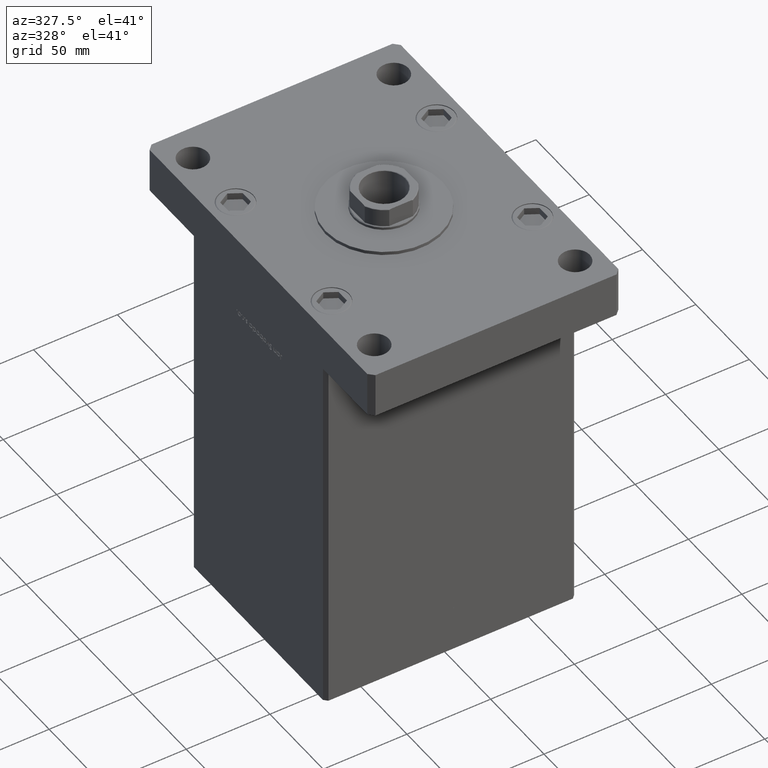
[diagram: clean part render]
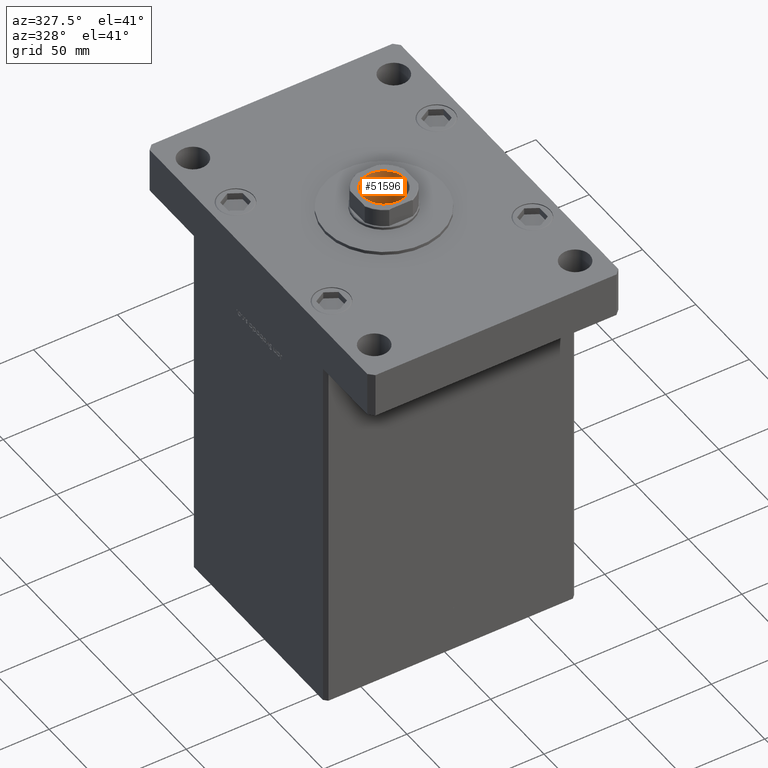
[diagram: same view with one face highlighted and labeled with its STEP entity id]
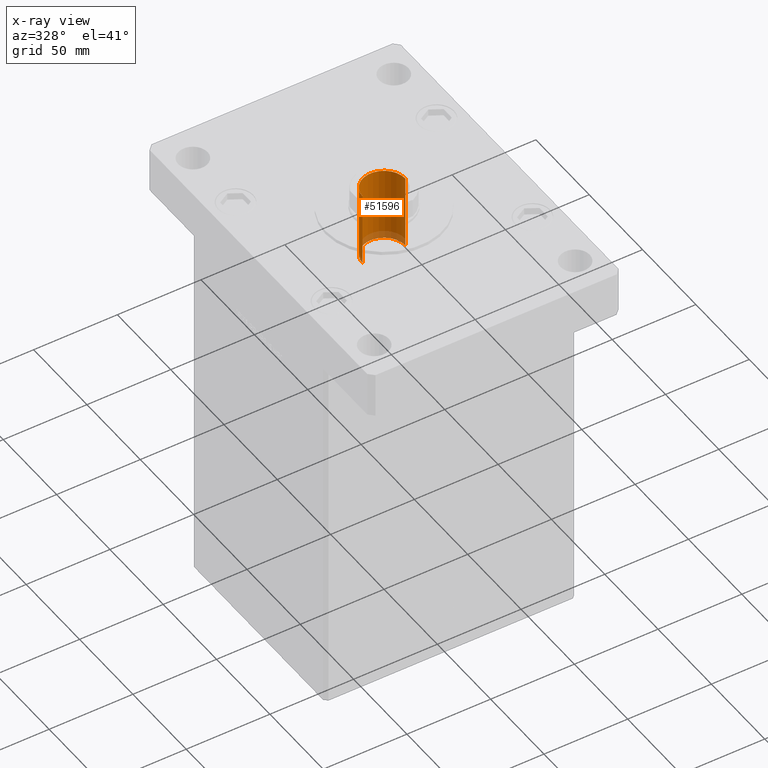
[diagram: x-ray of the same camera — body ghosted, the highlighted face saturated]
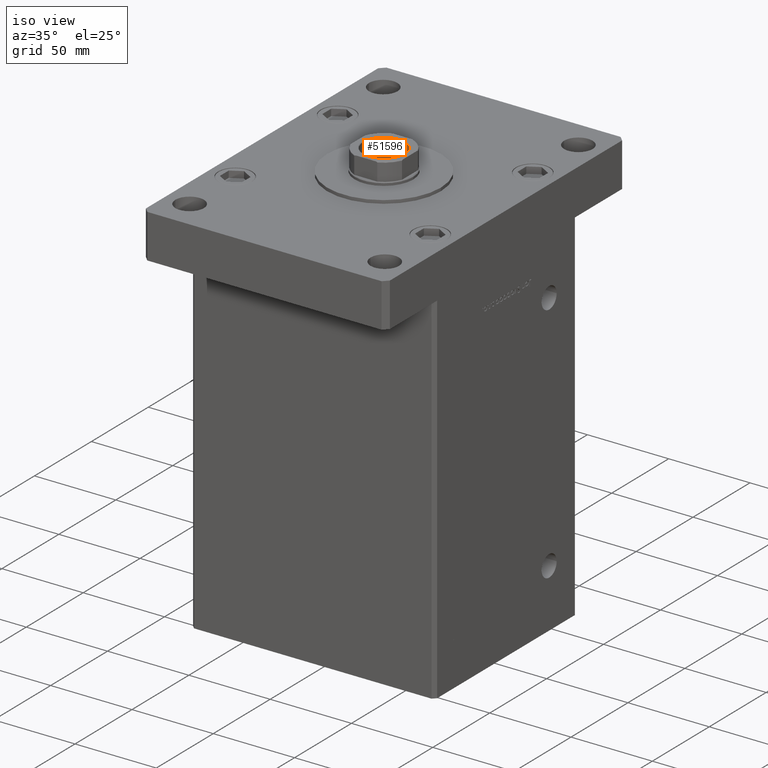
[diagram: same view with one face highlighted and labeled with its STEP entity id]
A machine part, auxiliary view. The second image highlights one B-rep face of the part: STEP entity #51596.
The next image is the same camera in x-ray: the body ghosted, the highlighted face saturated — about 10% of this face is hidden behind the body in this view.
A second angle (iso view) of the same face is appended — the face is thin or edge-on in the first view.
In plain terms, the highlighted cylindrical surface (edge-blend (fillet) strip) has radius 12.75 mm, axis along (0, 0, 1).
Its self-contained STEP definition (entity closure, byte-faithful):
#425 = VERTEX_POINT ( 'NONE', #40135 ) ;
#503 = DIRECTION ( 'NONE',  ( 1.000000000000000000, 0.000000000000000000, 0.000000000000000000 ) ) ;
#2831 = DIRECTION ( 'NONE',  ( 1.000000000000000000, 0.000000000000000000, 0.000000000000000000 ) ) ;
#3425 = CARTESIAN_POINT ( 'NONE',  ( 12.74999999999999467, 0.000000000000000000, 229.5000000000000000 ) ) ;
#5570 = EDGE_CURVE ( 'NONE', #27498, #425, #47304, .T. ) ;
#5645 = CARTESIAN_POINT ( 'NONE',  ( 12.74999999999999467, 0.000000000000000000, 229.1999999999999886 ) ) ;
#8087 = AXIS2_PLACEMENT_3D ( 'NONE', #48754, #28157, #503 ) ;
#9925 = ORIENTED_EDGE ( 'NONE', *, *, #41392, .F. ) ;
#10443 = CYLINDRICAL_SURFACE ( 'NONE', #11723, 12.74999999999999467 ) ;
#11325 = VECTOR ( 'NONE', #43482, 1000.000000000000000 ) ;
#11723 = AXIS2_PLACEMENT_3D ( 'NONE', #22381, #43226, #2831 ) ;
#11893 = CARTESIAN_POINT ( 'NONE',  ( -12.74999999999999112, 1.561424668912874125E-15, 184.5000000000000000 ) ) ;
#12684 = VERTEX_POINT ( 'NONE', #21571 ) ;
#21571 = CARTESIAN_POINT ( 'NONE',  ( 12.74999999999999112, 0.000000000000000000, 184.5000000000000000 ) ) ;
#22381 = CARTESIAN_POINT ( 'NONE',  ( 0.000000000000000000, 0.000000000000000000, 229.5000000000000000 ) ) ;
#24039 = DIRECTION ( 'NONE',  ( -0.000000000000000000, -0.000000000000000000, 1.000000000000000000 ) ) ;
#24907 = AXIS2_PLACEMENT_3D ( 'NONE', #28917, #45441, #44906 ) ;
#25272 = VECTOR ( 'NONE', #24039, 1000.000000000000000 ) ;
#26455 = FACE_OUTER_BOUND ( 'NONE', #27309, .T. ) ;
#26975 = CARTESIAN_POINT ( 'NONE',  ( -12.74999999999999467, 1.561424668912874519E-15, 229.5000000000000000 ) ) ;
#27309 = EDGE_LOOP ( 'NONE', ( #38007, #9925, #34079, #41601 ) ) ;
#27498 = VERTEX_POINT ( 'NONE', #11893 ) ;
#28157 = DIRECTION ( 'NONE',  ( -0.000000000000000000, -0.000000000000000000, 1.000000000000000000 ) ) ;
#28900 = LINE ( 'NONE', #3425, #25272 ) ;
#28917 = CARTESIAN_POINT ( 'NONE',  ( 0.000000000000000000, 0.000000000000000000, 229.1999999999999886 ) ) ;
#32998 = EDGE_CURVE ( 'NONE', #37667, #425, #38750, .T. ) ;
#34079 = ORIENTED_EDGE ( 'NONE', *, *, #37795, .T. ) ;
#37667 = VERTEX_POINT ( 'NONE', #5645 ) ;
#37795 = EDGE_CURVE ( 'NONE', #12684, #37667, #28900, .T. ) ;
#38007 = ORIENTED_EDGE ( 'NONE', *, *, #5570, .F. ) ;
#38750 = CIRCLE ( 'NONE', #24907, 12.74999999999999467 ) ;
#40135 = CARTESIAN_POINT ( 'NONE',  ( -12.74999999999999467, 1.561424668912874519E-15, 229.1999999999999886 ) ) ;
#41392 = EDGE_CURVE ( 'NONE', #12684, #27498, #44397, .T. ) ;
#41601 = ORIENTED_EDGE ( 'NONE', *, *, #32998, .T. ) ;
#43226 = DIRECTION ( 'NONE',  ( -0.000000000000000000, -0.000000000000000000, 1.000000000000000000 ) ) ;
#43482 = DIRECTION ( 'NONE',  ( -0.000000000000000000, -0.000000000000000000, 1.000000000000000000 ) ) ;
#44397 = CIRCLE ( 'NONE', #8087, 12.74999999999999112 ) ;
#44906 = DIRECTION ( 'NONE',  ( 1.000000000000000000, 0.000000000000000000, 0.000000000000000000 ) ) ;
#45441 = DIRECTION ( 'NONE',  ( 0.000000000000000000, 0.000000000000000000, 1.000000000000000000 ) ) ;
#47304 = LINE ( 'NONE', #26975, #11325 ) ;
#48754 = CARTESIAN_POINT ( 'NONE',  ( 0.000000000000000000, 0.000000000000000000, 184.5000000000000000 ) ) ;
#51596 = ADVANCED_FACE ( 'NONE', ( #26455 ), #10443, .F. ) ;